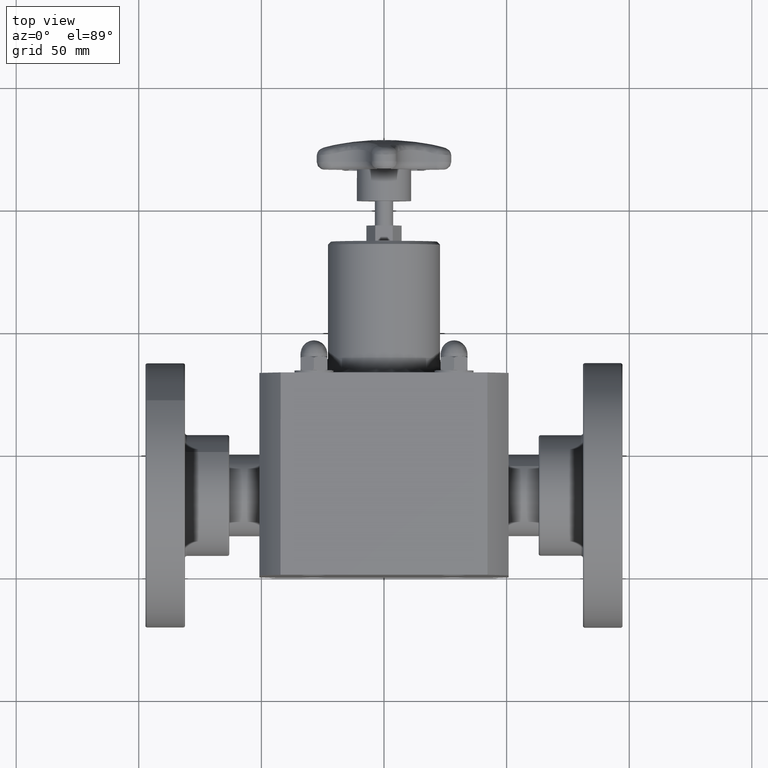
[diagram: clean part render]
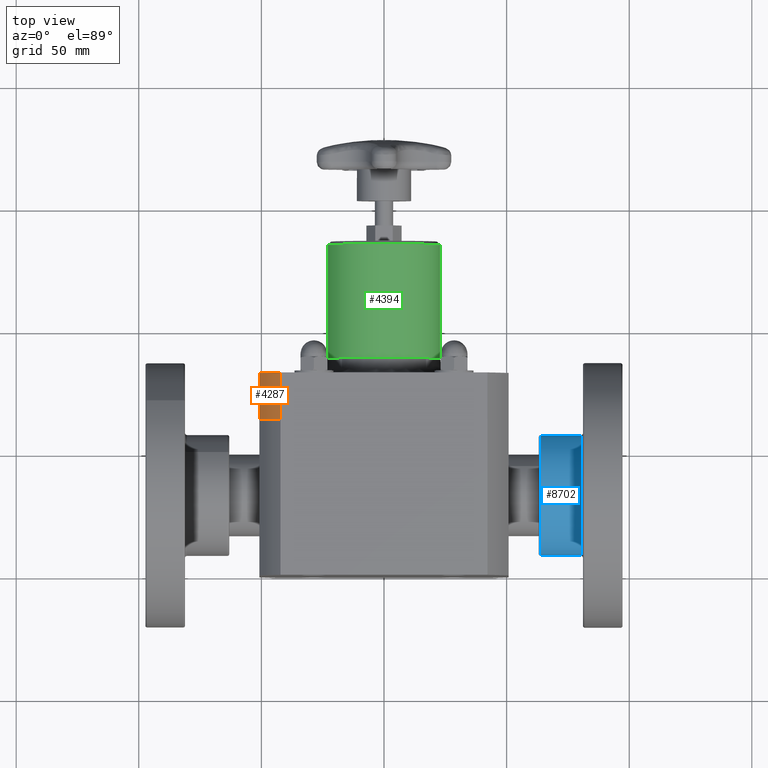
[diagram: same view with three faces highlighted in distinct colors, each labeled with its STEP entity id]
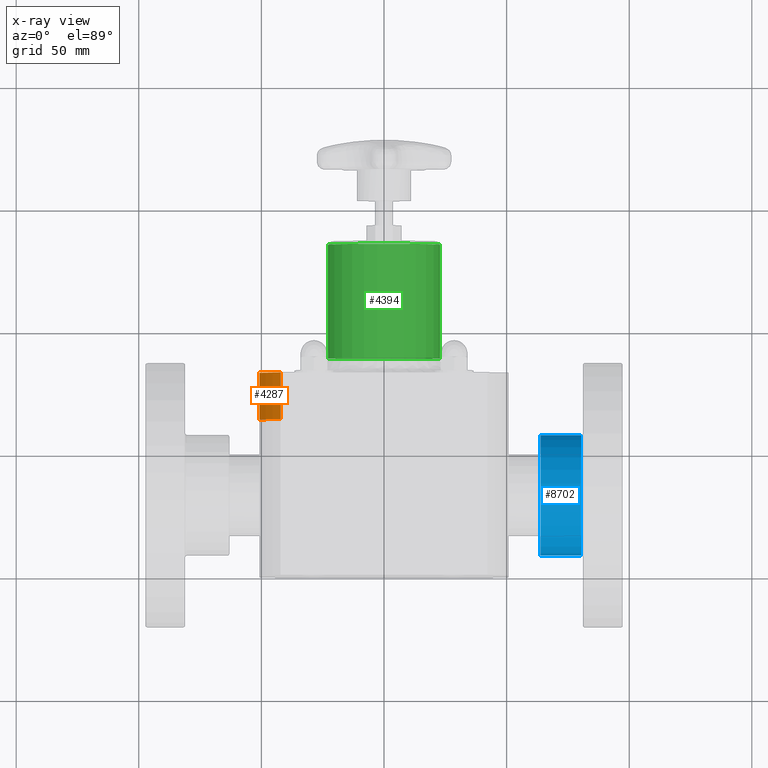
[diagram: x-ray of the same camera — body ghosted, the three highlighted faces saturated]
A machine part, top view with three faces highlighted in distinct colors.
The next image is the same camera in x-ray (body ghosted, the three faces saturated) — at least one of them is partly hidden behind the body in this view.
Their STEP definitions:

[orange] entity #4287 — the highlighted cylindrical surface (partial cylindrical patch) has radius 56.8325 mm, axis along (0, -1, 0).
#4246=CARTESIAN_POINT('',(6.993531E-016,2.875000000000000,5.463696E-016));
#4247=DIRECTION('',(5.780896E-045,-1.0,1.900469E-060));
#4248=DIRECTION('',(1.0,0.0,0.0));
#4249=AXIS2_PLACEMENT_3D('',#4246,#4247,#4248);
#4250=CYLINDRICAL_SURFACE('',#4249,2.237500000000000);
#4251=CARTESIAN_POINT('',(-1.999999999999999,2.500000000000000,1.003198011361666));
#4252=VERTEX_POINT('',#4251);
#4253=CARTESIAN_POINT('',(-1.999999999999999,3.250000000000000,1.003198011361666));
#4254=VERTEX_POINT('',#4253);
#4255=CARTESIAN_POINT('',(-1.999999999999999,2.500000000000000,1.003198011361666));
#4256=DIRECTION('',(0.0,1.0,0.0));
#4257=VECTOR('',#4256,0.750000000000000);
#4258=LINE('',#4255,#4257);
#4259=EDGE_CURVE('',#4252,#4254,#4258,.T.);
#4260=ORIENTED_EDGE('',*,*,#4259,.F.);
#4261=CARTESIAN_POINT('',(-1.660242828624776,2.500000000000000,1.500000000000000));
#4262=VERTEX_POINT('',#4261);
#4263=CARTESIAN_POINT('',(6.993531E-016,2.500000000000000,5.463696E-016));
#4264=DIRECTION('',(0.0,-1.0,0.0));
#4265=DIRECTION('',(1.0,0.0,0.0));
#4266=AXIS2_PLACEMENT_3D('',#4263,#4264,#4265);
#4267=CIRCLE('',#4266,2.237500000000000);
#4268=EDGE_CURVE('',#4262,#4252,#4267,.T.);
#4269=ORIENTED_EDGE('',*,*,#4268,.F.);
#4270=CARTESIAN_POINT('',(-1.660242828624776,3.250000000000000,1.500000000000000));
#4271=VERTEX_POINT('',#4270);
#4272=CARTESIAN_POINT('',(-1.660242828624776,3.250000000000000,1.500000000000000));
#4273=DIRECTION('',(0.0,-1.0,0.0));
#4274=VECTOR('',#4273,0.750000000000000);
#4275=LINE('',#4272,#4274);
#4276=EDGE_CURVE('',#4271,#4262,#4275,.T.);
#4277=ORIENTED_EDGE('',*,*,#4276,.F.);
#4278=CARTESIAN_POINT('',(6.993531E-016,3.250000000000000,5.463696E-016));
#4279=DIRECTION('',(0.0,-1.0,0.0));
#4280=DIRECTION('',(1.0,0.0,0.0));
#4281=AXIS2_PLACEMENT_3D('',#4278,#4279,#4280);
#4282=CIRCLE('',#4281,2.237500000000000);
#4283=EDGE_CURVE('',#4271,#4254,#4282,.T.);
#4284=ORIENTED_EDGE('',*,*,#4283,.T.);
#4285=EDGE_LOOP('',(#4260,#4269,#4277,#4284));
#4286=FACE_OUTER_BOUND('',#4285,.T.);
#4287=ADVANCED_FACE('',(#4286),#4250,.T.);

[blue] entity #8702 — the highlighted cylindrical surface (bore or boss wall) has radius 24.6507 mm, axis along (-1, -0, -0).
#8668=CARTESIAN_POINT('',(2.515000000000002,1.986247131141546,-0.686247131141543));
#8669=VERTEX_POINT('',#8668);
#8670=CARTESIAN_POINT('',(2.515000000000001,1.300000000000001,8.437661E-016));
#8671=DIRECTION('',(-1.0,6.087421E-017,-6.087421E-017));
#8672=DIRECTION('',(-8.608914E-017,-0.707106781186548,0.707106781186547));
#8673=AXIS2_PLACEMENT_3D('',#8670,#8671,#8672);
#8674=CIRCLE('',#8673,0.970500000000000);
#8675=EDGE_CURVE('',#8669,#8669,#8674,.T.);
#8683=CARTESIAN_POINT('',(2.840000000000001,1.300000000000001,8.835671E-016));
#8684=DIRECTION('',(-1.0,-1.355855E-031,-1.224647E-016));
#8685=DIRECTION('',(1.213160E-016,0.707106781186548,-0.707106781186547));
#8686=AXIS2_PLACEMENT_3D('',#8683,#8684,#8685);
#8687=CYLINDRICAL_SURFACE('',#8686,0.970500000000000);
#8688=CARTESIAN_POINT('',(3.165000000000001,1.986247131141546,-0.686247131141543));
#8689=VERTEX_POINT('',#8688);
#8690=CARTESIAN_POINT('',(3.165000000000001,1.300000000000001,9.233681E-016));
#8691=DIRECTION('',(1.0,-6.087421E-017,6.087421E-017));
#8692=DIRECTION('',(-8.608914E-017,-0.707106781186548,0.707106781186547));
#8693=AXIS2_PLACEMENT_3D('',#8690,#8691,#8692);
#8694=CIRCLE('',#8693,0.970500000000000);
#8695=EDGE_CURVE('',#8689,#8689,#8694,.T.);
#8696=ORIENTED_EDGE('',*,*,#8695,.F.);
#8697=EDGE_LOOP('',(#8696));
#8698=FACE_OUTER_BOUND('',#8697,.T.);
#8699=ORIENTED_EDGE('',*,*,#8675,.F.);
#8700=EDGE_LOOP('',(#8699));
#8701=FACE_BOUND('',#8700,.T.);
#8702=ADVANCED_FACE('',(#8698,#8701),#8687,.T.);

[green] entity #4394 — the highlighted cylindrical surface (bore or boss wall) has radius 22.86 mm, axis along (0, -1, 0).
#4360=CARTESIAN_POINT('',(0.900000000000000,5.325000000000000,7.037240E-016));
#4361=VERTEX_POINT('',#4360);
#4362=CARTESIAN_POINT('',(6.993531E-016,5.325000000000000,5.463696E-016));
#4363=DIRECTION('',(0.0,-1.0,0.0));
#4364=DIRECTION('',(1.0,0.0,0.0));
#4365=AXIS2_PLACEMENT_3D('',#4362,#4363,#4364);
#4366=CIRCLE('',#4365,0.900000000000000);
#4367=EDGE_CURVE('',#4361,#4361,#4366,.T.);
#4375=CARTESIAN_POINT('',(6.993531E-016,4.412500000000000,5.463696E-016));
#4376=DIRECTION('',(5.780896E-045,-1.0,1.900469E-060));
#4377=DIRECTION('',(1.0,0.0,0.0));
#4378=AXIS2_PLACEMENT_3D('',#4375,#4376,#4377);
#4379=CYLINDRICAL_SURFACE('',#4378,0.900000000000000);
#4380=CARTESIAN_POINT('',(0.900000000000001,3.500000000000000,7.037240E-016));
#4381=VERTEX_POINT('',#4380);
#4382=CARTESIAN_POINT('',(6.993531E-016,3.500000000000000,5.463696E-016));
#4383=DIRECTION('',(0.0,-1.0,0.0));
#4384=DIRECTION('',(1.0,0.0,0.0));
#4385=AXIS2_PLACEMENT_3D('',#4382,#4383,#4384);
#4386=CIRCLE('',#4385,0.900000000000000);
#4387=EDGE_CURVE('',#4381,#4381,#4386,.T.);
#4388=ORIENTED_EDGE('',*,*,#4387,.F.);
#4389=EDGE_LOOP('',(#4388));
#4390=FACE_OUTER_BOUND('',#4389,.T.);
#4391=ORIENTED_EDGE('',*,*,#4367,.T.);
#4392=EDGE_LOOP('',(#4391));
#4393=FACE_BOUND('',#4392,.T.);
#4394=ADVANCED_FACE('',(#4390,#4393),#4379,.T.);